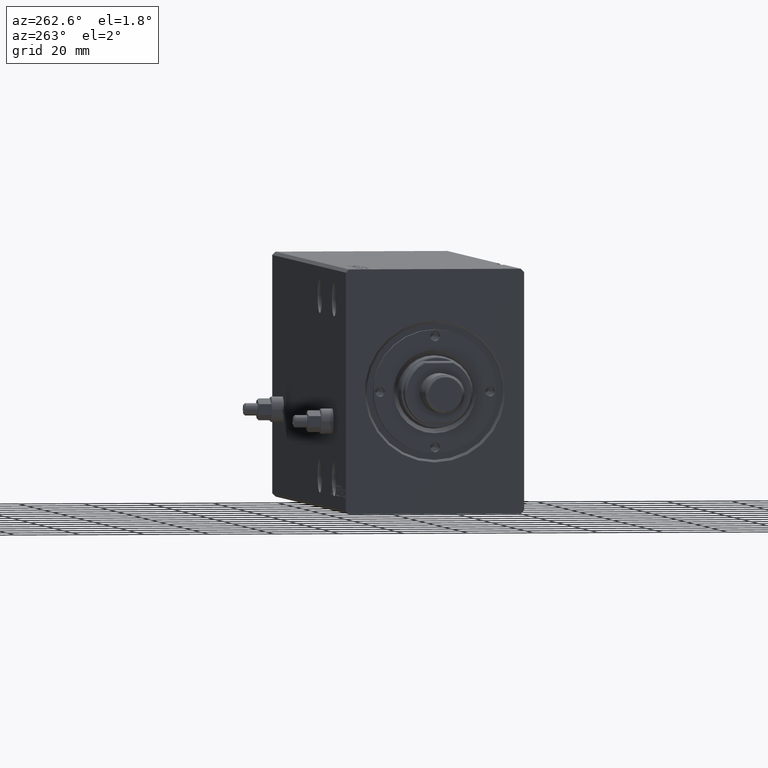
[diagram: clean part render]
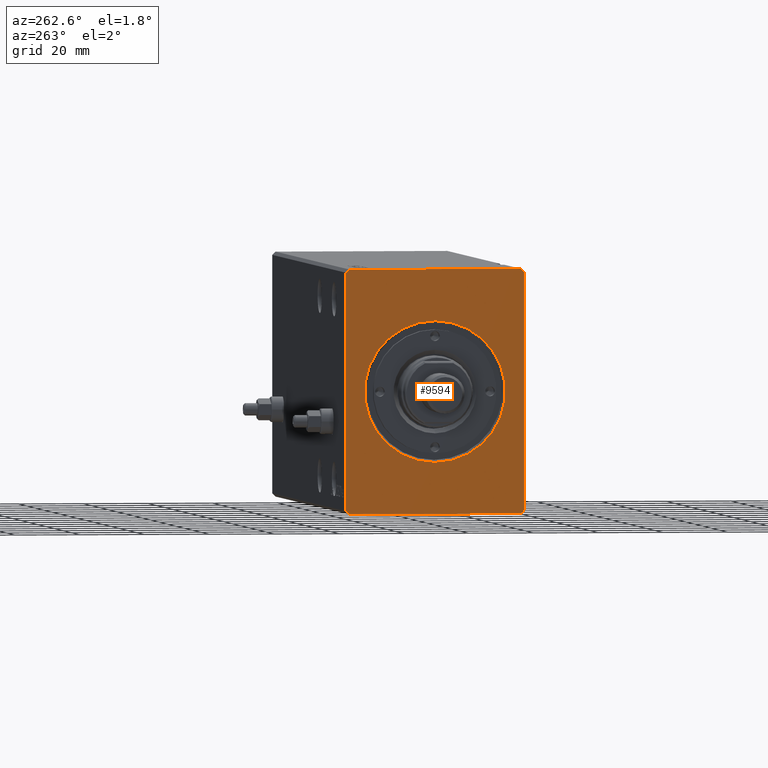
[diagram: same view with one face highlighted and labeled with its STEP entity id]
A machine part, auxiliary view. The second image highlights one B-rep face of the part: STEP entity #9594.
In plain terms, the highlighted planar face has unit normal (1, 0, 0).
Its self-contained STEP definition (entity closure, byte-faithful):
#141 = EDGE_CURVE ( 'NONE', #20536, #21473, #20622, .T. ) ;
#283 = LINE ( 'NONE', #22529, #24955 ) ;
#546 = ORIENTED_EDGE ( 'NONE', *, *, #15999, .T. ) ;
#921 = VECTOR ( 'NONE', #8962, 1000.000000000000114 ) ;
#1254 = CARTESIAN_POINT ( 'NONE',  ( 0.000000000000000000, -27.50000000000000711, 36.50000000000000711 ) ) ;
#1390 = AXIS2_PLACEMENT_3D ( 'NONE', #28461, #32127, #5594 ) ;
#1392 = VERTEX_POINT ( 'NONE', #12467 ) ;
#1482 = CIRCLE ( 'NONE', #7770, 21.69999999999999574 ) ;
#3275 = LINE ( 'NONE', #30010, #26977 ) ;
#3778 = EDGE_CURVE ( 'NONE', #25846, #21334, #8506, .T. ) ;
#4617 = EDGE_CURVE ( 'NONE', #26380, #39712, #28841, .T. ) ;
#4752 = ORIENTED_EDGE ( 'NONE', *, *, #20686, .F. ) ;
#4890 = CARTESIAN_POINT ( 'NONE',  ( 0.000000000000000000, 27.50000000000000355, 36.50000000000000711 ) ) ;
#5594 = DIRECTION ( 'NONE',  ( 0.000000000000000000, 0.000000000000000000, -1.000000000000000000 ) ) ;
#5821 = DIRECTION ( 'NONE',  ( 0.000000000000000000, -0.7071067811865474617, -0.7071067811865474617 ) ) ;
#5890 = VECTOR ( 'NONE', #28145, 1000.000000000000000 ) ;
#6152 = CARTESIAN_POINT ( 'NONE',  ( 0.000000000000000000, 26.50000000000000711, -37.49999999999999289 ) ) ;
#7355 = VECTOR ( 'NONE', #11790, 1000.000000000000114 ) ;
#7500 = ORIENTED_EDGE ( 'NONE', *, *, #13139, .F. ) ;
#7522 = ORIENTED_EDGE ( 'NONE', *, *, #30770, .F. ) ;
#7770 = AXIS2_PLACEMENT_3D ( 'NONE', #37267, #14186, #14620 ) ;
#8506 = LINE ( 'NONE', #14540, #5890 ) ;
#8782 = CARTESIAN_POINT ( 'NONE',  ( 0.000000000000000000, 27.50000000000000711, -36.49999999999999289 ) ) ;
#8962 = DIRECTION ( 'NONE',  ( 0.000000000000000000, 0.7071067811865474617, 0.7071067811865474617 ) ) ;
#9594 = ADVANCED_FACE ( 'NONE', ( #41385, #38379 ), #15072, .F. ) ;
#10268 = LINE ( 'NONE', #41819, #23661 ) ;
#10720 = VECTOR ( 'NONE', #33769, 1000.000000000000114 ) ;
#11790 = DIRECTION ( 'NONE',  ( 0.000000000000000000, -0.7071067811865474617, 0.7071067811865474617 ) ) ;
#12227 = EDGE_CURVE ( 'NONE', #31639, #1392, #13873, .T. ) ;
#12290 = CARTESIAN_POINT ( 'NONE',  ( 0.000000000000000000, 26.50000000000000711, -37.49999999999999289 ) ) ;
#12467 = CARTESIAN_POINT ( 'NONE',  ( 0.000000000000000000, 2.657483554149755949E-15, -21.69999999999999574 ) ) ;
#12926 = CARTESIAN_POINT ( 'NONE',  ( 0.000000000000000000, 0.000000000000000000, 0.000000000000000000 ) ) ;
#13139 = EDGE_CURVE ( 'NONE', #39191, #20536, #3275, .T. ) ;
#13873 = CIRCLE ( 'NONE', #30422, 21.69999999999999574 ) ;
#14186 = DIRECTION ( 'NONE',  ( 1.000000000000000000, 0.000000000000000000, 0.000000000000000000 ) ) ;
#14540 = CARTESIAN_POINT ( 'NONE',  ( 0.000000000000000000, 26.50000000000000355, 37.50000000000000711 ) ) ;
#14620 = DIRECTION ( 'NONE',  ( 0.000000000000000000, 0.000000000000000000, -1.000000000000000000 ) ) ;
#15072 = PLANE ( 'NONE',  #1390 ) ;
#15999 = EDGE_CURVE ( 'NONE', #1392, #31639, #1482, .T. ) ;
#17034 = CARTESIAN_POINT ( 'NONE',  ( 0.000000000000000000, -27.50000000000000355, -36.49999999999998579 ) ) ;
#19155 = EDGE_CURVE ( 'NONE', #21473, #36357, #283, .T. ) ;
#19490 = ORIENTED_EDGE ( 'NONE', *, *, #3778, .F. ) ;
#20536 = VERTEX_POINT ( 'NONE', #17034 ) ;
#20622 = LINE ( 'NONE', #40021, #10720 ) ;
#20686 = EDGE_CURVE ( 'NONE', #21334, #39191, #10268, .T. ) ;
#21334 = VERTEX_POINT ( 'NONE', #42364 ) ;
#21473 = VERTEX_POINT ( 'NONE', #29855 ) ;
#22167 = EDGE_CURVE ( 'NONE', #36357, #26380, #32680, .T. ) ;
#22529 = CARTESIAN_POINT ( 'NONE',  ( 0.000000000000000000, -26.50000000000000355, -37.49999999999999289 ) ) ;
#23413 = ORIENTED_EDGE ( 'NONE', *, *, #22167, .F. ) ;
#23661 = VECTOR ( 'NONE', #5821, 1000.000000000000114 ) ;
#24955 = VECTOR ( 'NONE', #39311, 1000.000000000000000 ) ;
#25846 = VERTEX_POINT ( 'NONE', #37879 ) ;
#26380 = VERTEX_POINT ( 'NONE', #30024 ) ;
#26977 = VECTOR ( 'NONE', #36282, 1000.000000000000000 ) ;
#27004 = EDGE_LOOP ( 'NONE', ( #30445, #546 ) ) ;
#27978 = LINE ( 'NONE', #4890, #7355 ) ;
#28145 = DIRECTION ( 'NONE',  ( 0.000000000000000000, -1.000000000000000000, 0.000000000000000000 ) ) ;
#28461 = CARTESIAN_POINT ( 'NONE',  ( 0.000000000000000000, 0.000000000000000000, 0.000000000000000000 ) ) ;
#28841 = LINE ( 'NONE', #8782, #30270 ) ;
#28975 = ORIENTED_EDGE ( 'NONE', *, *, #19155, .F. ) ;
#29387 = ORIENTED_EDGE ( 'NONE', *, *, #4617, .F. ) ;
#29855 = CARTESIAN_POINT ( 'NONE',  ( 0.000000000000000000, -26.50000000000000355, -37.49999999999999289 ) ) ;
#30010 = CARTESIAN_POINT ( 'NONE',  ( 0.000000000000000000, -27.50000000000000711, 36.50000000000000711 ) ) ;
#30024 = CARTESIAN_POINT ( 'NONE',  ( 0.000000000000000000, 27.50000000000000711, -36.49999999999999289 ) ) ;
#30270 = VECTOR ( 'NONE', #41967, 1000.000000000000000 ) ;
#30422 = AXIS2_PLACEMENT_3D ( 'NONE', #12926, #38808, #32555 ) ;
#30445 = ORIENTED_EDGE ( 'NONE', *, *, #12227, .T. ) ;
#30770 = EDGE_CURVE ( 'NONE', #39712, #25846, #27978, .T. ) ;
#31403 = ORIENTED_EDGE ( 'NONE', *, *, #141, .F. ) ;
#31639 = VERTEX_POINT ( 'NONE', #40175 ) ;
#32127 = DIRECTION ( 'NONE',  ( 1.000000000000000000, 0.000000000000000000, 0.000000000000000000 ) ) ;
#32555 = DIRECTION ( 'NONE',  ( 0.000000000000000000, 0.000000000000000000, -1.000000000000000000 ) ) ;
#32680 = LINE ( 'NONE', #6152, #921 ) ;
#33769 = DIRECTION ( 'NONE',  ( 0.000000000000000000, 0.7071067811865451302, -0.7071067811865500152 ) ) ;
#35567 = CARTESIAN_POINT ( 'NONE',  ( 0.000000000000000000, 27.50000000000000355, 36.50000000000000711 ) ) ;
#36282 = DIRECTION ( 'NONE',  ( 0.000000000000000000, 4.752667057470705491E-17, -1.000000000000000000 ) ) ;
#36357 = VERTEX_POINT ( 'NONE', #12290 ) ;
#36710 = EDGE_LOOP ( 'NONE', ( #7522, #29387, #23413, #28975, #31403, #7500, #4752, #19490 ) ) ;
#37267 = CARTESIAN_POINT ( 'NONE',  ( 0.000000000000000000, 0.000000000000000000, 0.000000000000000000 ) ) ;
#37879 = CARTESIAN_POINT ( 'NONE',  ( 0.000000000000000000, 26.50000000000000355, 37.50000000000000711 ) ) ;
#38379 = FACE_OUTER_BOUND ( 'NONE', #36710, .T. ) ;
#38808 = DIRECTION ( 'NONE',  ( 1.000000000000000000, 0.000000000000000000, 0.000000000000000000 ) ) ;
#39191 = VERTEX_POINT ( 'NONE', #1254 ) ;
#39311 = DIRECTION ( 'NONE',  ( 0.000000000000000000, 1.000000000000000000, 0.000000000000000000 ) ) ;
#39712 = VERTEX_POINT ( 'NONE', #35567 ) ;
#40021 = CARTESIAN_POINT ( 'NONE',  ( 0.000000000000000000, -27.50000000000000355, -36.49999999999998579 ) ) ;
#40175 = CARTESIAN_POINT ( 'NONE',  ( 0.000000000000000000, 0.000000000000000000, 21.69999999999999574 ) ) ;
#41385 = FACE_BOUND ( 'NONE', #27004, .T. ) ;
#41819 = CARTESIAN_POINT ( 'NONE',  ( 0.000000000000000000, -26.50000000000000711, 37.50000000000000711 ) ) ;
#41967 = DIRECTION ( 'NONE',  ( 0.000000000000000000, -4.752667057470704875E-17, 1.000000000000000000 ) ) ;
#42364 = CARTESIAN_POINT ( 'NONE',  ( 0.000000000000000000, -26.50000000000000711, 37.50000000000000711 ) ) ;